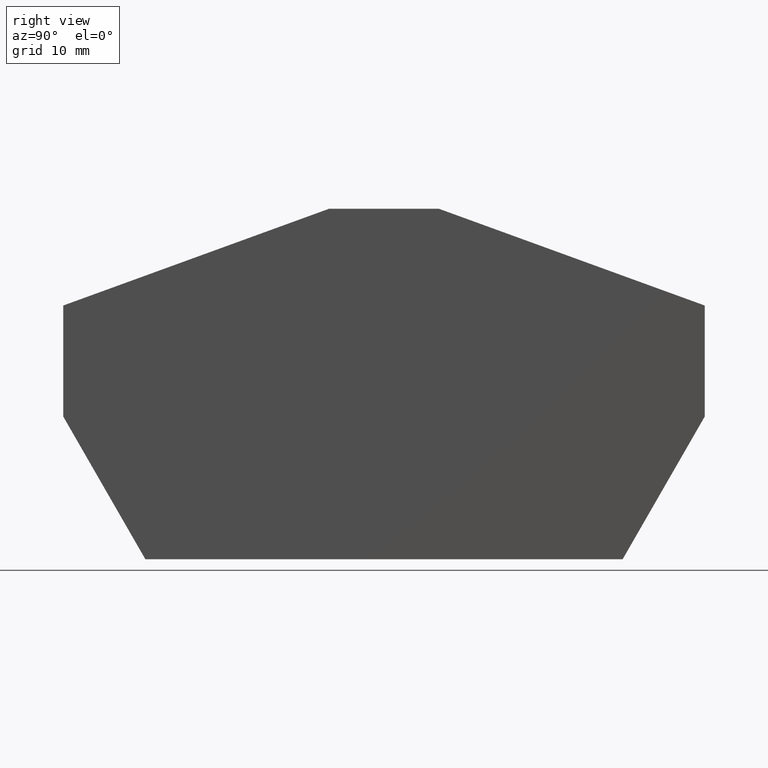
[diagram: clean part render]
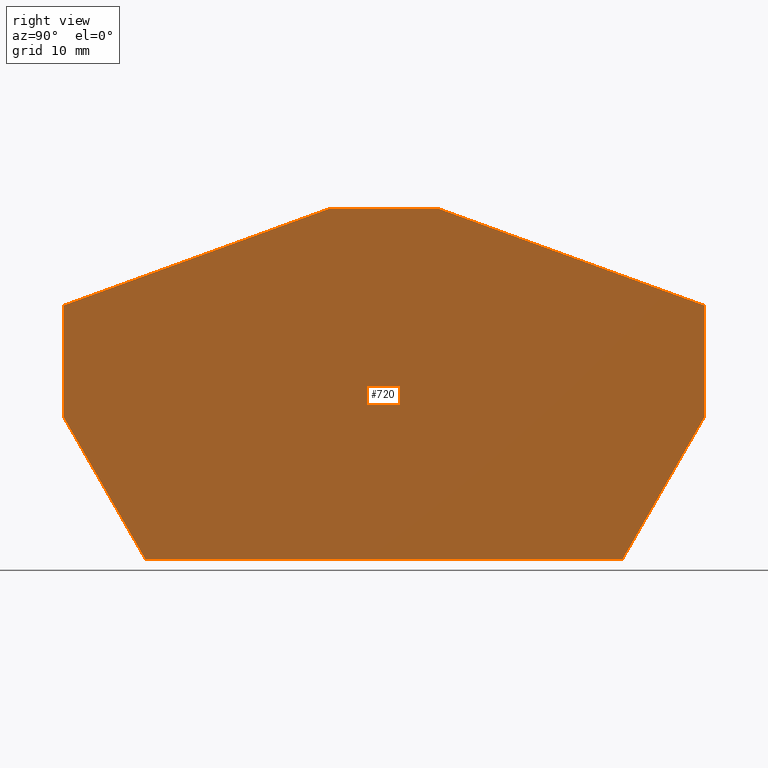
[diagram: same view with one face highlighted and labeled with its STEP entity id]
A machine part, right view. The second image highlights one B-rep face of the part: STEP entity #720.
In plain terms, the highlighted planar face has unit normal (-1, -0, 0).
Its self-contained STEP definition (entity closure, byte-faithful):
#10=CARTESIAN_POINT('',(59.3204928664012,-7.81225460871403,45.32));
#20=DIRECTION('',(1.99157772406956E-28,-7.105427357601E-15,-1.));
#30=DIRECTION('',(-1.,-2.8028964674997E-14,2.24207754291971E-44));
#40=AXIS2_PLACEMENT_3D('',#10,#20,#30);
#50=PLANE('',#40);
#60=CARTESIAN_POINT('',(0.,-24.9985038184946,45.3200000000001));
#70=DIRECTION('',(0.939692620785981,0.342020143325468,
-2.41473507855972E-15));
#80=VECTOR('',#70,1.);
#90=LINE('',#60,#80);
#100=CARTESIAN_POINT('',(33.9321672216761,-12.6482049656694,
45.3200000000001));
#110=VERTEX_POINT('',#100);
#120=CARTESIAN_POINT('',(60.715140245067,-2.90000000000693,45.32));
#130=VERTEX_POINT('',#120);
#140=EDGE_CURVE('',#110,#130,#90,.T.);
#150=ORIENTED_EDGE('',*,*,#140,.F.);
#160=CARTESIAN_POINT('',(0.,-2.9000000000013,45.32));
#170=DIRECTION('',(1.,-9.26522781017574E-14,8.58280664880461E-28));
#180=VECTOR('',#170,1.);
#190=LINE('',#160,#180);
#200=CARTESIAN_POINT('',(71.7491941982856,-2.90000000000795,45.32));
#210=VERTEX_POINT('',#200);
#220=EDGE_CURVE('',#130,#210,#190,.T.);
#230=ORIENTED_EDGE('',*,*,#220,.F.);
#240=CARTESIAN_POINT('',(0.,23.2145710207724,45.3199999999998));
#250=DIRECTION('',(0.939692620785828,-0.342020143325889,
2.41473507855972E-15));
#260=VECTOR('',#250,1.);
#270=LINE('',#240,#260);
#280=CARTESIAN_POINT('',(98.5321672216761,-12.6482049656839,
45.3200000000001));
#290=VERTEX_POINT('',#280);
#300=EDGE_CURVE('',#210,#290,#270,.T.);
#310=ORIENTED_EDGE('',*,*,#300,.F.);
#320=CARTESIAN_POINT('',(98.5321672216789,0.,45.32));
#330=DIRECTION('',(2.2374468138856E-13,1.,-7.105427357601E-15));
#340=VECTOR('',#330,1.);
#350=LINE('',#320,#340);
#360=CARTESIAN_POINT('',(98.5321672216736,-23.8197560553673,
45.3200000000001));
#370=VERTEX_POINT('',#360);
#380=EDGE_CURVE('',#370,#290,#350,.T.);
#390=ORIENTED_EDGE('',*,*,#380,.T.);
#400=CARTESIAN_POINT('',(112.239848664921,0.,45.32));
#410=DIRECTION('',(-0.498780693240312,-0.866728227330063,
6.16173778666962E-15));
#420=VECTOR('',#410,1.);
#430=LINE('',#400,#420);
#440=CARTESIAN_POINT('',(90.2566919140678,-38.2000000000124,
45.3200000000002));
#450=VERTEX_POINT('',#440);
#460=EDGE_CURVE('',#370,#450,#430,.T.);
#470=ORIENTED_EDGE('',*,*,#460,.F.);
#480=CARTESIAN_POINT('',(0.,-38.1999999999922,45.3200000000002));
#490=DIRECTION('',(1.,-2.23752475534467E-13,1.79229197666214E-27));
#500=VECTOR('',#490,1.);
#510=LINE('',#480,#500);
#520=CARTESIAN_POINT('',(42.2076425292826,-38.2000000000016,
45.3200000000002));
#530=VERTEX_POINT('',#520);
#540=EDGE_CURVE('',#530,#450,#510,.T.);
#550=ORIENTED_EDGE('',*,*,#540,.T.);
#560=CARTESIAN_POINT('',(20.2244857784315,0.,45.32));
#570=DIRECTION('',(-0.498780693240377,0.866728227330026,
-6.16173778666962E-15));
#580=VECTOR('',#570,1.);
#590=LINE('',#560,#580);
#600=CARTESIAN_POINT('',(33.9321672216736,-23.8197560553535,
45.3200000000001));
#610=VERTEX_POINT('',#600);
#620=EDGE_CURVE('',#530,#610,#590,.T.);
#630=ORIENTED_EDGE('',*,*,#620,.F.);
#640=CARTESIAN_POINT('',(33.9321672216789,0.,45.32));
#650=DIRECTION('',(-2.2374468138856E-13,-1.,7.105427357601E-15));
#660=VECTOR('',#650,1.);
#670=LINE('',#640,#660);
#680=EDGE_CURVE('',#110,#610,#670,.T.);
#690=ORIENTED_EDGE('',*,*,#680,.T.);
#700=EDGE_LOOP('',(#690,#630,#550,#470,#390,#310,#230,#150));
#710=FACE_OUTER_BOUND('',#700,.T.);
#720=ADVANCED_FACE('',(#710),#50,.F.);